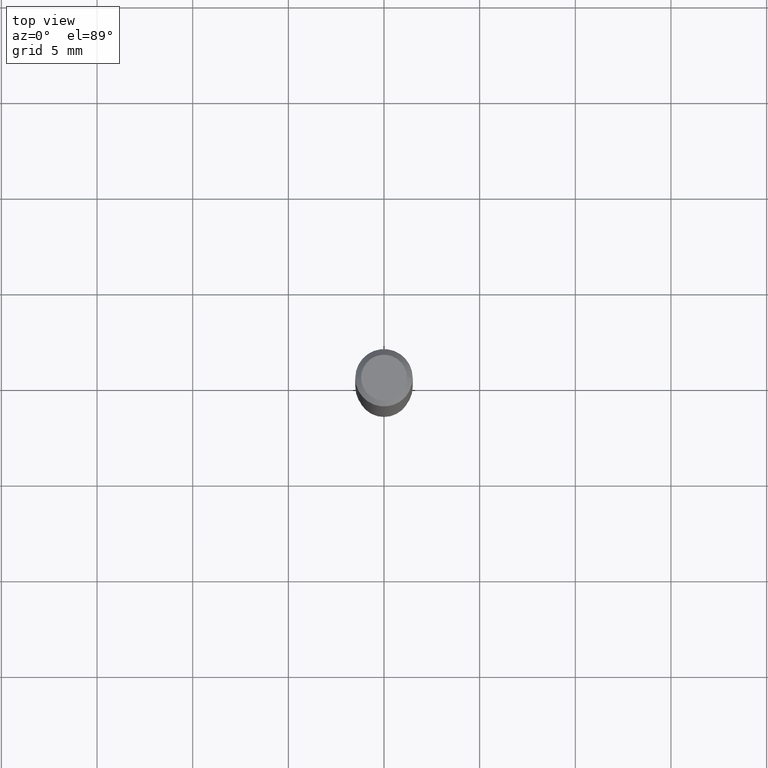
[diagram: clean part render]
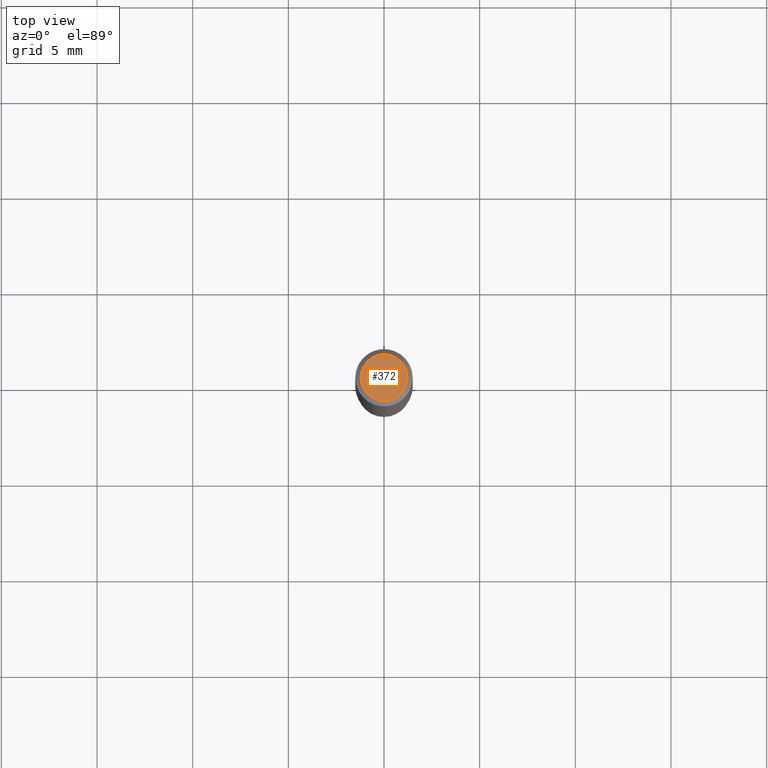
[diagram: same view with one face highlighted and labeled with its STEP entity id]
A machine part, top view. The second image highlights one B-rep face of the part: STEP entity #372.
In plain terms, the highlighted planar face has unit normal (0, -0, -1).
Its self-contained STEP definition (entity closure, byte-faithful):
#36 = DIRECTION ( 'NONE',  ( 2.438088387897960049E-29, -3.491481338843145188E-15, -1.000000000000000000 ) ) ;
#66 = VERTEX_POINT ( 'NONE', #423 ) ;
#67 = AXIS2_PLACEMENT_3D ( 'NONE', #206, #210, #427 ) ;
#117 = EDGE_CURVE ( 'NONE', #341, #66, #375, .T. ) ;
#118 = CARTESIAN_POINT ( 'NONE',  ( 0.04724000000000000421, -3.852183633974369345E-16, -3.380025165621689721E-19 ) ) ;
#198 = EDGE_CURVE ( 'NONE', #66, #341, #254, .T. ) ;
#206 = CARTESIAN_POINT ( 'NONE',  ( 8.265746106709734507E-48, -1.180129479067563789E-33, -3.380025165646692144E-19 ) ) ;
#210 = DIRECTION ( 'NONE',  ( -2.445468806185136597E-29, 3.491481338843145583E-15, 1.000000000000000000 ) ) ;
#222 = ORIENTED_EDGE ( 'NONE', *, *, #198, .T. ) ;
#228 = CARTESIAN_POINT ( 'NONE',  ( 4.132873053354867254E-48, -5.900647395337818946E-34, -1.690012582823346072E-19 ) ) ;
#254 = CIRCLE ( 'NONE', #437, 0.04724000000000000421 ) ;
#258 = ORIENTED_EDGE ( 'NONE', *, *, #117, .T. ) ;
#261 = DIRECTION ( 'NONE',  ( -2.445468806185136597E-29, 3.491481338843145583E-15, 1.000000000000000000 ) ) ;
#335 = DIRECTION ( 'NONE',  ( -1.000000000000000000, 6.982962677686265922E-15, -4.876176775795935793E-29 ) ) ;
#336 = EDGE_LOOP ( 'NONE', ( #222, #258 ) ) ;
#341 = VERTEX_POINT ( 'NONE', #118 ) ;
#362 = CARTESIAN_POINT ( 'NONE',  ( 8.265746106709734507E-48, -1.180129479067563789E-33, -3.380025165646692144E-19 ) ) ;
#370 = PLANE ( 'NONE',  #383 ) ;
#372 = ADVANCED_FACE ( 'NONE', ( #455 ), #370, .F. ) ;
#375 = CIRCLE ( 'NONE', #67, 0.04724000000000000421 ) ;
#383 = AXIS2_PLACEMENT_3D ( 'NONE', #228, #36, #335 ) ;
#397 = DIRECTION ( 'NONE',  ( 1.000000000000000000, -6.982962677686266711E-15, 4.876185090822587894E-29 ) ) ;
#423 = CARTESIAN_POINT ( 'NONE',  ( -0.04724000000000000421, 3.504923541997677355E-16, -3.380025165670481712E-19 ) ) ;
#427 = DIRECTION ( 'NONE',  ( 1.000000000000000000, -6.982962677686266711E-15, 4.876185090822587894E-29 ) ) ;
#437 = AXIS2_PLACEMENT_3D ( 'NONE', #362, #261, #397 ) ;
#455 = FACE_OUTER_BOUND ( 'NONE', #336, .T. ) ;